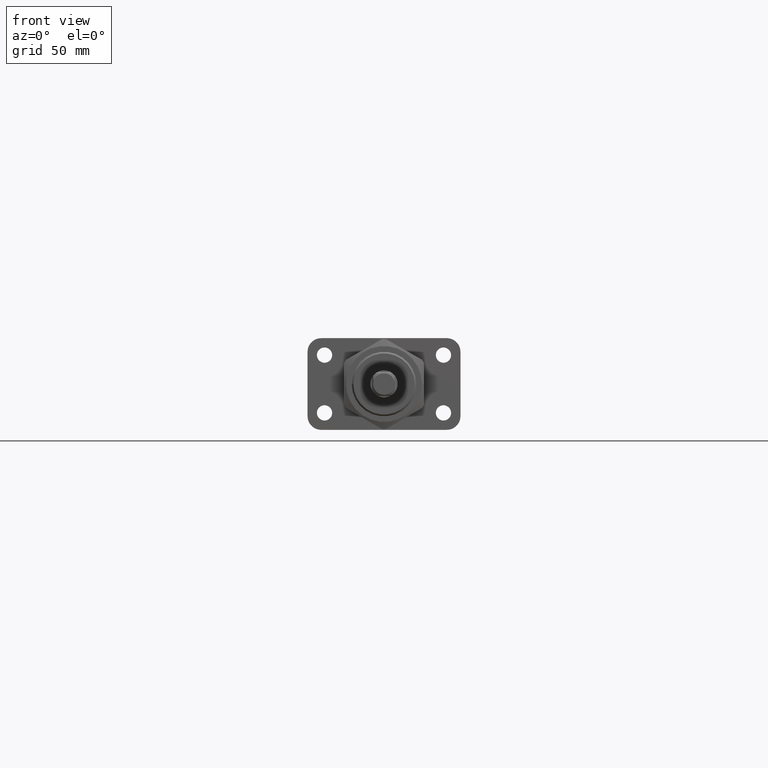
[diagram: clean part render]
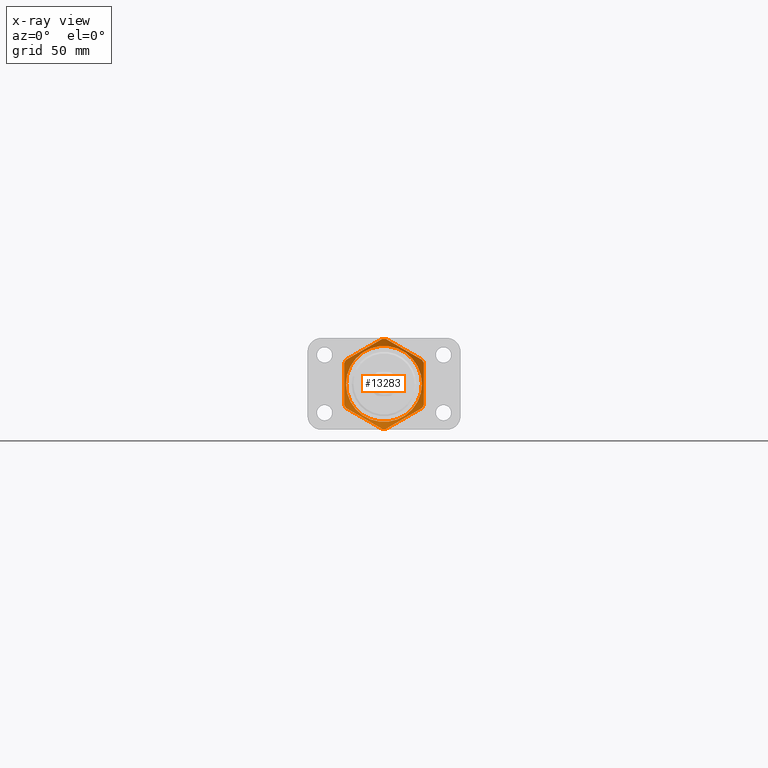
[diagram: x-ray — body ghosted, one internal face saturated and labeled with its STEP entity id]
A machine part, front view, then the same camera in x-ray: the body is ghosted and one INTERNAL B-rep face — a face not visible from any outside direction — is saturated and labeled: STEP entity #13283.
In plain terms, the highlighted conical surface has half-angle 70 deg.
Its self-contained STEP definition (entity closure, byte-faithful):
#1673=(
BOUNDED_CURVE()
B_SPLINE_CURVE(2,(#21116,#21117,#21118),.UNSPECIFIED.,.F.,.F.)
B_SPLINE_CURVE_WITH_KNOTS((3,3),(0.,2.45920531052521),.UNSPECIFIED.)
CURVE()
GEOMETRIC_REPRESENTATION_ITEM()
RATIONAL_B_SPLINE_CURVE((1.,1.12765957446808,1.))
REPRESENTATION_ITEM('')
);
#1674=(
BOUNDED_CURVE()
B_SPLINE_CURVE(2,(#21123,#21124,#21125),.UNSPECIFIED.,.F.,.F.)
B_SPLINE_CURVE_WITH_KNOTS((3,3),(0.,2.45920531052522),.UNSPECIFIED.)
CURVE()
GEOMETRIC_REPRESENTATION_ITEM()
RATIONAL_B_SPLINE_CURVE((1.,1.1276595744681,1.))
REPRESENTATION_ITEM('')
);
#1676=(
BOUNDED_CURVE()
B_SPLINE_CURVE(2,(#21136,#21137,#21138),.UNSPECIFIED.,.F.,.F.)
B_SPLINE_CURVE_WITH_KNOTS((3,3),(0.,2.45920531052523),.UNSPECIFIED.)
CURVE()
GEOMETRIC_REPRESENTATION_ITEM()
RATIONAL_B_SPLINE_CURVE((1.,1.1276595744681,1.))
REPRESENTATION_ITEM('')
);
#1678=(
BOUNDED_CURVE()
B_SPLINE_CURVE(2,(#21149,#21150,#21151),.UNSPECIFIED.,.F.,.F.)
B_SPLINE_CURVE_WITH_KNOTS((3,3),(0.,2.45920531052523),.UNSPECIFIED.)
CURVE()
GEOMETRIC_REPRESENTATION_ITEM()
RATIONAL_B_SPLINE_CURVE((1.,1.1276595744681,1.))
REPRESENTATION_ITEM('')
);
#1681=(
BOUNDED_CURVE()
B_SPLINE_CURVE(2,(#21168,#21169,#21170),.UNSPECIFIED.,.F.,.F.)
B_SPLINE_CURVE_WITH_KNOTS((3,3),(0.,2.45920531052521),.UNSPECIFIED.)
CURVE()
GEOMETRIC_REPRESENTATION_ITEM()
RATIONAL_B_SPLINE_CURVE((1.,1.12765957446808,1.))
REPRESENTATION_ITEM('')
);
#1683=(
BOUNDED_CURVE()
B_SPLINE_CURVE(2,(#21181,#21182,#21183),.UNSPECIFIED.,.F.,.F.)
B_SPLINE_CURVE_WITH_KNOTS((3,3),(0.,2.45920531052522),.UNSPECIFIED.)
CURVE()
GEOMETRIC_REPRESENTATION_ITEM()
RATIONAL_B_SPLINE_CURVE((1.,1.12765957446808,1.))
REPRESENTATION_ITEM('')
);
#2069=CIRCLE('',#14150,22.3160181013868);
#2117=CIRCLE('',#14265,26.5);
#2118=CIRCLE('',#14267,26.5);
#2119=CIRCLE('',#14269,26.5);
#2120=CIRCLE('',#14271,26.5);
#2121=CIRCLE('',#14273,26.5);
#2276=CIRCLE('',#14449,26.5);
#3389=FACE_BOUND('',#4625,.T.);
#3685=FACE_OUTER_BOUND('',#4624,.T.);
#4624=EDGE_LOOP('',(#9471,#9472,#9473,#9474,#9475,#9476,#9477,#9478,#9479,
#9480,#9481,#9482));
#4625=EDGE_LOOP('',(#9483));
#5726=VERTEX_POINT('',#21085);
#5729=VERTEX_POINT('',#21113);
#5730=VERTEX_POINT('',#21115);
#5731=VERTEX_POINT('',#21121);
#5732=VERTEX_POINT('',#21122);
#5735=VERTEX_POINT('',#21134);
#5736=VERTEX_POINT('',#21135);
#5739=VERTEX_POINT('',#21147);
#5740=VERTEX_POINT('',#21148);
#5745=VERTEX_POINT('',#21165);
#5746=VERTEX_POINT('',#21167);
#5749=VERTEX_POINT('',#21178);
#5750=VERTEX_POINT('',#21180);
#6980=EDGE_CURVE('',#5726,#5726,#2069,.T.);
#6991=EDGE_CURVE('',#5730,#5729,#1673,.T.);
#6993=EDGE_CURVE('',#5731,#5732,#1674,.T.);
#6997=EDGE_CURVE('',#5735,#5736,#1676,.T.);
#7001=EDGE_CURVE('',#5739,#5740,#1678,.T.);
#7007=EDGE_CURVE('',#5746,#5745,#1681,.T.);
#7011=EDGE_CURVE('',#5750,#5749,#1683,.T.);
#7117=EDGE_CURVE('',#5730,#5745,#2117,.T.);
#7118=EDGE_CURVE('',#5739,#5736,#2118,.T.);
#7119=EDGE_CURVE('',#5735,#5749,#2119,.T.);
#7120=EDGE_CURVE('',#5746,#5732,#2120,.T.);
#7121=EDGE_CURVE('',#5731,#5740,#2121,.T.);
#7404=EDGE_CURVE('',#5750,#5729,#2276,.T.);
#9471=ORIENTED_EDGE('',*,*,#6991,.T.);
#9472=ORIENTED_EDGE('',*,*,#7404,.F.);
#9473=ORIENTED_EDGE('',*,*,#7011,.T.);
#9474=ORIENTED_EDGE('',*,*,#7119,.F.);
#9475=ORIENTED_EDGE('',*,*,#6997,.T.);
#9476=ORIENTED_EDGE('',*,*,#7118,.F.);
#9477=ORIENTED_EDGE('',*,*,#7001,.T.);
#9478=ORIENTED_EDGE('',*,*,#7121,.F.);
#9479=ORIENTED_EDGE('',*,*,#6993,.T.);
#9480=ORIENTED_EDGE('',*,*,#7120,.F.);
#9481=ORIENTED_EDGE('',*,*,#7007,.T.);
#9482=ORIENTED_EDGE('',*,*,#7117,.F.);
#9483=ORIENTED_EDGE('',*,*,#6980,.T.);
#12277=CONICAL_SURFACE('',#14448,24.4080090506934,69.9999999999998);
#13283=ADVANCED_FACE('',(#3685,#3389),#12277,.T.);
#14150=AXIS2_PLACEMENT_3D('',#21086,#16178,#16179);
#14265=AXIS2_PLACEMENT_3D('',#21546,#16468,#16469);
#14267=AXIS2_PLACEMENT_3D('',#21548,#16472,#16473);
#14269=AXIS2_PLACEMENT_3D('',#21550,#16476,#16477);
#14271=AXIS2_PLACEMENT_3D('',#21552,#16480,#16481);
#14273=AXIS2_PLACEMENT_3D('',#21554,#16484,#16485);
#14448=AXIS2_PLACEMENT_3D('',#22808,#16922,#16923);
#14449=AXIS2_PLACEMENT_3D('',#22809,#16924,#16925);
#16178=DIRECTION('center_axis',(1.92414935335906E-16,-1.,0.));
#16179=DIRECTION('ref_axis',(1.,1.92414935335906E-16,0.));
#16468=DIRECTION('center_axis',(1.92414935335906E-16,-1.,0.));
#16469=DIRECTION('ref_axis',(1.,1.92414935335906E-16,0.));
#16472=DIRECTION('center_axis',(1.92414935335906E-16,-1.,0.));
#16473=DIRECTION('ref_axis',(1.,1.92414935335906E-16,0.));
#16476=DIRECTION('center_axis',(1.92414935335906E-16,-1.,0.));
#16477=DIRECTION('ref_axis',(1.,1.92414935335906E-16,0.));
#16480=DIRECTION('center_axis',(1.92414935335906E-16,-1.,0.));
#16481=DIRECTION('ref_axis',(1.,1.92414935335906E-16,0.));
#16484=DIRECTION('center_axis',(1.92414935335906E-16,-1.,0.));
#16485=DIRECTION('ref_axis',(1.,1.92414935335906E-16,0.));
#16922=DIRECTION('center_axis',(1.92414935335906E-16,-1.,0.));
#16923=DIRECTION('ref_axis',(1.,2.29081856371787E-16,0.));
#16924=DIRECTION('center_axis',(1.92414935335906E-16,-1.,0.));
#16925=DIRECTION('ref_axis',(1.,1.92414935335906E-16,0.));
#21085=CARTESIAN_POINT('',(22.3160181013868,-1.77635683940025E-14,0.));
#21086=CARTESIAN_POINT('Origin',(-2.44249065417534E-14,-1.77635683940025E-14,
0.));
#21113=CARTESIAN_POINT('',(-23.5,-1.52284487180383,12.2474487139159));
#21115=CARTESIAN_POINT('',(-23.5,-1.52284487180383,-12.2474487139159));
#21116=CARTESIAN_POINT('Ctrl Pts',(-23.5,-1.52284487180383,-12.2474487139159));
#21117=CARTESIAN_POINT('Ctrl Pts',(-23.5,0.537364001401102,-1.77635683940025E-14));
#21118=CARTESIAN_POINT('Ctrl Pts',(-23.5,-1.52284487180383,12.2474487139158));
#21121=CARTESIAN_POINT('',(22.3566017177982,-1.52284487180383,-14.2278726319763));
#21122=CARTESIAN_POINT('',(1.14339828220175,-1.52284487180383,-26.4753213458923));
#21123=CARTESIAN_POINT('Ctrl Pts',(22.3566017177982,-1.52284487180383,-14.2278726319763));
#21124=CARTESIAN_POINT('Ctrl Pts',(11.7499999999999,0.537364001401119,-20.3515969889343));
#21125=CARTESIAN_POINT('Ctrl Pts',(1.14339828220176,-1.52284487180383,-26.4753213458923));
#21134=CARTESIAN_POINT('',(1.14339828220169,-1.52284487180383,26.4753213458923));
#21135=CARTESIAN_POINT('',(22.3566017177982,-1.52284487180383,14.2278726319763));
#21136=CARTESIAN_POINT('Ctrl Pts',(1.14339828220171,-1.52284487180383,26.4753213458923));
#21137=CARTESIAN_POINT('Ctrl Pts',(11.75,0.537364001401119,20.3515969889343));
#21138=CARTESIAN_POINT('Ctrl Pts',(22.3566017177982,-1.52284487180383,14.2278726319763));
#21147=CARTESIAN_POINT('',(23.5,-1.52284487180383,12.2474487139159));
#21148=CARTESIAN_POINT('',(23.5,-1.52284487180383,-12.2474487139159));
#21149=CARTESIAN_POINT('Ctrl Pts',(23.5,-1.52284487180383,12.2474487139159));
#21150=CARTESIAN_POINT('Ctrl Pts',(23.5,0.537364001401119,0.));
#21151=CARTESIAN_POINT('Ctrl Pts',(23.5,-1.52284487180383,-12.2474487139159));
#21165=CARTESIAN_POINT('',(-22.3566017177982,-1.52284487180383,-14.2278726319764));
#21167=CARTESIAN_POINT('',(-1.14339828220183,-1.52284487180383,-26.4753213458923));
#21168=CARTESIAN_POINT('Ctrl Pts',(-1.14339828220185,-1.52284487180383,
-26.4753213458922));
#21169=CARTESIAN_POINT('Ctrl Pts',(-11.7500000000001,0.537364001401102,
-20.3515969889343));
#21170=CARTESIAN_POINT('Ctrl Pts',(-22.3566017177982,-1.52284487180383,
-14.2278726319764));
#21178=CARTESIAN_POINT('',(-1.14339828220182,-1.52284487180383,26.4753213458923));
#21180=CARTESIAN_POINT('',(-22.3566017177982,-1.52284487180383,14.2278726319763));
#21181=CARTESIAN_POINT('Ctrl Pts',(-22.3566017177982,-1.52284487180383,
14.2278726319764));
#21182=CARTESIAN_POINT('Ctrl Pts',(-11.7500000000001,0.537364001401102,
20.3515969889343));
#21183=CARTESIAN_POINT('Ctrl Pts',(-1.14339828220185,-1.52284487180383,
26.4753213458922));
#21546=CARTESIAN_POINT('Origin',(-2.41318884442187E-14,-1.52284487180383,
0.));
#21548=CARTESIAN_POINT('Origin',(-2.41318884442187E-14,-1.52284487180383,
0.));
#21550=CARTESIAN_POINT('Origin',(-2.41318884442187E-14,-1.52284487180383,
0.));
#21552=CARTESIAN_POINT('Origin',(-2.41318884442187E-14,-1.52284487180383,
0.));
#21554=CARTESIAN_POINT('Origin',(-2.41318884442187E-14,-1.52284487180383,
0.));
#22808=CARTESIAN_POINT('Origin',(-2.42783974929861E-14,-0.761422435901924,
0.));
#22809=CARTESIAN_POINT('Origin',(-2.41318884442187E-14,-1.52284487180383,
0.));